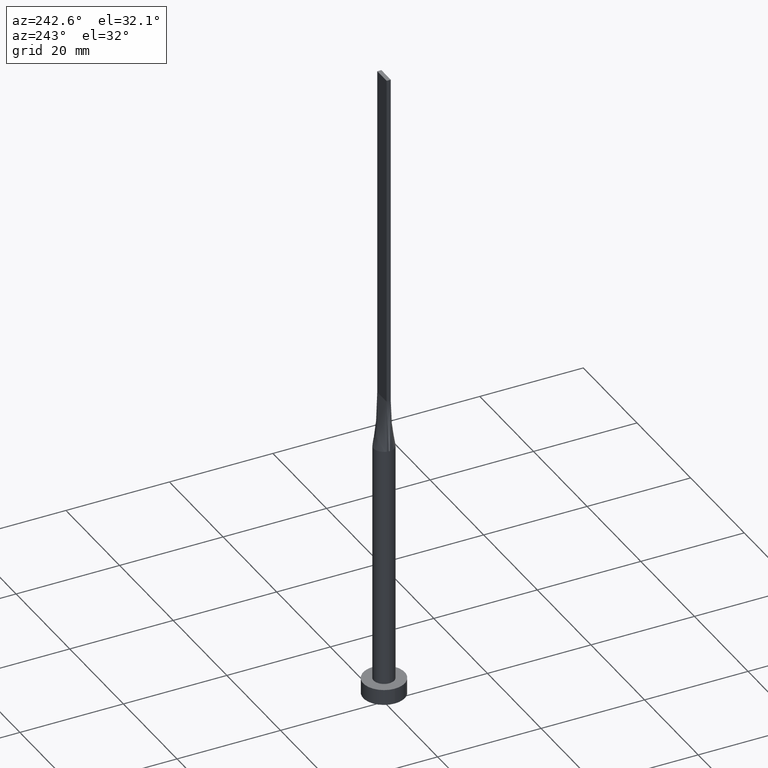
[diagram: clean part render]
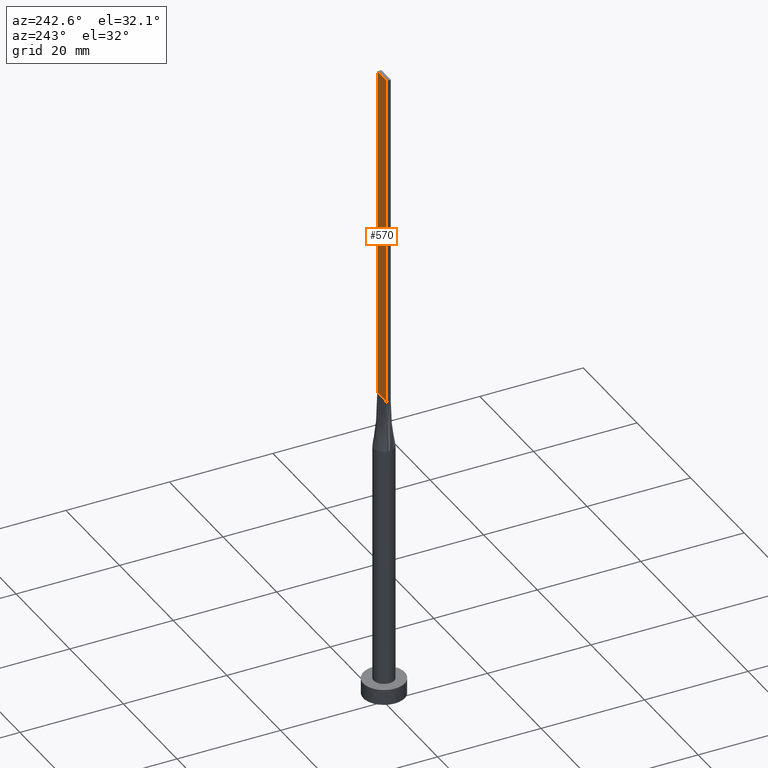
[diagram: same view with one face highlighted and labeled with its STEP entity id]
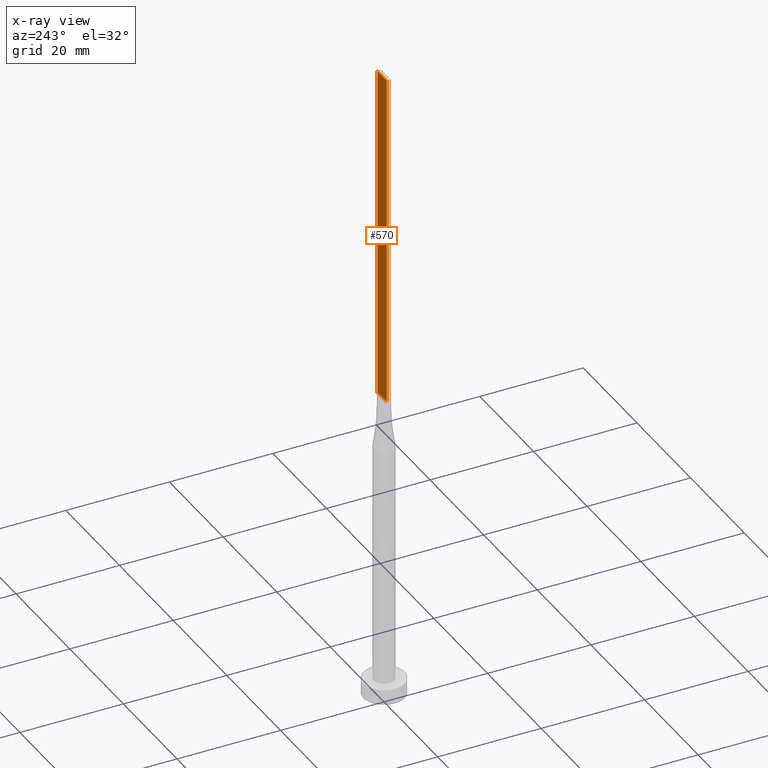
[diagram: x-ray of the same camera — body ghosted, the highlighted face saturated]
A machine part, auxiliary view. The second image highlights one B-rep face of the part: STEP entity #570.
The next image is the same camera in x-ray: the body ghosted, the highlighted face saturated — about 0% of this face is hidden behind the body in this view.
In plain terms, the highlighted planar face has unit normal (0, -1, 0).
Its self-contained STEP definition (entity closure, byte-faithful):
#8 = PLANE ( 'NONE',  #482 ) ;
#16 = CARTESIAN_POINT ( 'NONE',  ( -1.749999999999999778, 0.4000000000000003553, 60.00000000000000711 ) ) ;
#23 = VERTEX_POINT ( 'NONE', #244 ) ;
#71 = EDGE_LOOP ( 'NONE', ( #366, #156, #110, #284 ) ) ;
#85 = LINE ( 'NONE', #299, #182 ) ;
#87 = EDGE_CURVE ( 'NONE', #504, #23, #357, .T. ) ;
#97 = CARTESIAN_POINT ( 'NONE',  ( 1.749999999999999778, 0.4000000000000003553, 125.0000000000000000 ) ) ;
#110 = ORIENTED_EDGE ( 'NONE', *, *, #472, .F. ) ;
#139 = DIRECTION ( 'NONE',  ( -0.000000000000000000, -0.000000000000000000, -1.000000000000000000 ) ) ;
#144 = LINE ( 'NONE', #97, #393 ) ;
#156 = ORIENTED_EDGE ( 'NONE', *, *, #87, .F. ) ;
#160 = VERTEX_POINT ( 'NONE', #562 ) ;
#174 = VECTOR ( 'NONE', #139, 1000.000000000000000 ) ;
#182 = VECTOR ( 'NONE', #263, 1000.000000000000000 ) ;
#228 = EDGE_CURVE ( 'NONE', #160, #23, #416, .T. ) ;
#244 = CARTESIAN_POINT ( 'NONE',  ( -1.749999999999999778, 0.4000000000000003553, 60.00000000000000711 ) ) ;
#263 = DIRECTION ( 'NONE',  ( -1.000000000000000000, 0.000000000000000000, 0.000000000000000000 ) ) ;
#280 = DIRECTION ( 'NONE',  ( 0.000000000000000000, -0.000000000000000000, -1.000000000000000000 ) ) ;
#284 = ORIENTED_EDGE ( 'NONE', *, *, #525, .T. ) ;
#299 = CARTESIAN_POINT ( 'NONE',  ( 1.749999999999999778, 0.4000000000000003553, 125.0000000000000000 ) ) ;
#339 = VECTOR ( 'NONE', #462, 1000.000000000000000 ) ;
#341 = VERTEX_POINT ( 'NONE', #569 ) ;
#357 = LINE ( 'NONE', #540, #174 ) ;
#366 = ORIENTED_EDGE ( 'NONE', *, *, #228, .T. ) ;
#393 = VECTOR ( 'NONE', #480, 1000.000000000000000 ) ;
#398 = CARTESIAN_POINT ( 'NONE',  ( -1.749999999999999778, 0.4000000000000003553, 125.0000000000000000 ) ) ;
#404 = DIRECTION ( 'NONE',  ( 0.000000000000000000, -1.000000000000000000, 0.000000000000000000 ) ) ;
#416 = LINE ( 'NONE', #16, #339 ) ;
#448 = CARTESIAN_POINT ( 'NONE',  ( 1.749999999999999778, 0.4000000000000003553, 125.0000000000000000 ) ) ;
#462 = DIRECTION ( 'NONE',  ( -1.000000000000000000, -0.000000000000000000, -0.000000000000000000 ) ) ;
#472 = EDGE_CURVE ( 'NONE', #341, #504, #85, .T. ) ;
#480 = DIRECTION ( 'NONE',  ( -0.000000000000000000, -0.000000000000000000, -1.000000000000000000 ) ) ;
#482 = AXIS2_PLACEMENT_3D ( 'NONE', #448, #404, #280 ) ;
#504 = VERTEX_POINT ( 'NONE', #398 ) ;
#525 = EDGE_CURVE ( 'NONE', #341, #160, #144, .T. ) ;
#540 = CARTESIAN_POINT ( 'NONE',  ( -1.749999999999999778, 0.4000000000000003553, 125.0000000000000000 ) ) ;
#555 = FACE_OUTER_BOUND ( 'NONE', #71, .T. ) ;
#562 = CARTESIAN_POINT ( 'NONE',  ( 1.749999999999999778, 0.4000000000000003553, 60.00000000000000711 ) ) ;
#569 = CARTESIAN_POINT ( 'NONE',  ( 1.749999999999999778, 0.4000000000000003553, 125.0000000000000000 ) ) ;
#570 = ADVANCED_FACE ( 'NONE', ( #555 ), #8, .F. ) ;